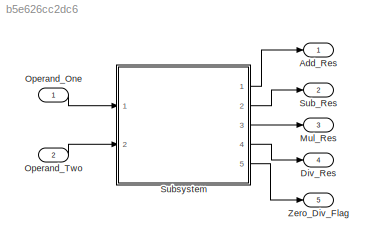
MODEL slx_b5e626cc2dc6
KIND model
CONFIG AbsTol = auto
CONFIG FixedStep = auto
CONFIG MaxStep = auto
CONFIG MinStep = auto
CONFIG RelTol = 1e-3
CONFIG SampleTimeConstraint = Unconstrained
CONFIG Solver = VariableStepAuto
CONFIG SolverMode = Auto
CONFIG SolverName = VariableStepAuto
CONFIG StartTime = 0.0
CONFIG StopTime = 10.0
BLOCK [Outport] Add_Res
  IconDisplay = Port number
BLOCK [Outport] Div_Res 
  IconDisplay = Port number
  Port = 4
BLOCK [Outport] Mul_Res
  IconDisplay = Port number
  Port = 3
BLOCK [Inport] Operand_One
  IconDisplay = Port number
BLOCK [Inport] Operand_Two
  IconDisplay = Port number
  Port = 2
BLOCK [Outport] Sub_Res
  IconDisplay = Port number
  Port = 2
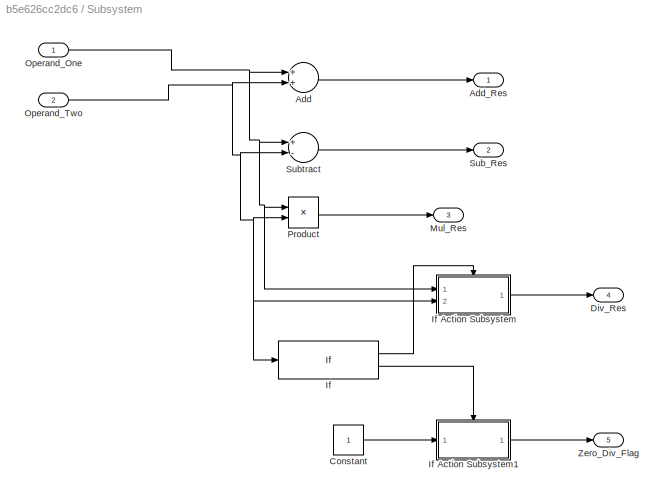
BLOCK [SubSystem] Subsystem
  MinAlgLoopOccurrences = on
  Ports = [2, 5]
  RTWFcnNameOpts = Use subsystem name
  RTWSystemCode = Reusable function
  RequestExecContextInheritance = off
  TreatAsAtomicUnit = on
  Variant = off
BLOCK [Sum] Subsystem/Add
  InputSameDT = off
  OutDataTypeStr = Inherit: Inherit via internal rule
  Ports = [2, 1]
  SaturateOnIntegerOverflow = off
BLOCK [Outport] Subsystem/Add_Res
  IconDisplay = Port number
BLOCK [Constant] Subsystem/Constant
BLOCK [Outport] Subsystem/Div_Res 
  IconDisplay = Port number
  Port = 4
BLOCK [If] Subsystem/If
  Ports = [1, 2]
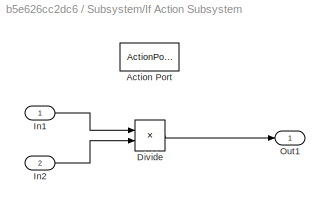
BLOCK [SubSystem] Subsystem/If Action Subsystem
  Ports = [2, 1, 0, 0, 0, 0, 0, 1]
  RequestExecContextInheritance = off
  TreatAsAtomicUnit = on
  Variant = off
BLOCK [ActionPort] Subsystem/If Action Subsystem/Action Port
  ActionType = then
BLOCK [Product] Subsystem/If Action Subsystem/Divide
  InputSameDT = off
  Inputs = */
  OutDataTypeStr = Inherit: Inherit via internal rule
  Ports = [2, 1]
  RndMeth = Floor
  SaturateOnIntegerOverflow = off
BLOCK [Inport] Subsystem/If Action Subsystem/In1
  IconDisplay = Port number
BLOCK [Inport] Subsystem/If Action Subsystem/In2
  IconDisplay = Port number
  Port = 2
BLOCK [Outport] Subsystem/If Action Subsystem/Out1
  IconDisplay = Port number
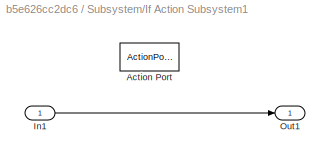
BLOCK [SubSystem] Subsystem/If Action Subsystem1
  Ports = [1, 1, 0, 0, 0, 0, 0, 1]
  RequestExecContextInheritance = off
  TreatAsAtomicUnit = on
  Variant = off
BLOCK [ActionPort] Subsystem/If Action Subsystem1/Action Port
  ActionType = else
BLOCK [Inport] Subsystem/If Action Subsystem1/In1
  IconDisplay = Port number
BLOCK [Outport] Subsystem/If Action Subsystem1/Out1
  IconDisplay = Port number
BLOCK [Outport] Subsystem/Mul_Res
  IconDisplay = Port number
  Port = 3
BLOCK [Inport] Subsystem/Operand_One
  IconDisplay = Port number
BLOCK [Inport] Subsystem/Operand_Two
  IconDisplay = Port number
  Port = 2
BLOCK [Product] Subsystem/Product
  InputSameDT = off
  OutDataTypeStr = Inherit: Inherit via internal rule
  Ports = [2, 1]
  RndMeth = Floor
  SaturateOnIntegerOverflow = off
BLOCK [Outport] Subsystem/Sub_Res
  IconDisplay = Port number
  Port = 2
BLOCK [Sum] Subsystem/Subtract
  InputSameDT = off
  Inputs = +-
  OutDataTypeStr = Inherit: Inherit via internal rule
  Ports = [2, 1]
  SaturateOnIntegerOverflow = off
BLOCK [Outport] Subsystem/Zero_Div_Flag
  IconDisplay = Port number
  Port = 5
BLOCK [Outport] Zero_Div_Flag
  IconDisplay = Port number
  Port = 5
LINE Operand_One:1 -> Subsystem:1
LINE Operand_Two:1 -> Subsystem:2
LINE Subsystem/Add:1 -> Subsystem/Add_Res:1
LINE Subsystem/Constant:1 -> Subsystem/If Action Subsystem1:1
LINE Subsystem/If Action Subsystem/Divide:1 -> Subsystem/If Action Subsystem/Out1:1
LINE Subsystem/If Action Subsystem/In1:1 -> Subsystem/If Action Subsystem/Divide:1
LINE Subsystem/If Action Subsystem/In2:1 -> Subsystem/If Action Subsystem/Divide:2
LINE Subsystem/If Action Subsystem1/In1:1 -> Subsystem/If Action Subsystem1/Out1:1
LINE Subsystem/If Action Subsystem1:1 -> Subsystem/Zero_Div_Flag:1
LINE Subsystem/If Action Subsystem:1 -> Subsystem/Div_Res :1
LINE Subsystem/If:1 -> Subsystem/If Action Subsystem:ifaction
LINE Subsystem/If:2 -> Subsystem/If Action Subsystem1:ifaction
NET Subsystem/Operand_One:1 -> Subsystem/Add:1, Subsystem/If Action Subsystem:1, Subsystem/Product:1, Subsystem/Subtract:1
NET Subsystem/Operand_Two:1 -> Subsystem/Add:2, Subsystem/If Action Subsystem:2, Subsystem/If:1, Subsystem/Product:2, Subsystem/Subtract:2
LINE Subsystem/Product:1 -> Subsystem/Mul_Res:1
LINE Subsystem/Subtract:1 -> Subsystem/Sub_Res:1
LINE Subsystem:1 -> Add_Res:1
LINE Subsystem:2 -> Sub_Res:1
LINE Subsystem:3 -> Mul_Res:1
LINE Subsystem:4 -> Div_Res :1
LINE Subsystem:5 -> Zero_Div_Flag:1
note: NET lines group one-source signal fan-out (src -> all destinations, sorted); 1:1 wires keep LINE
